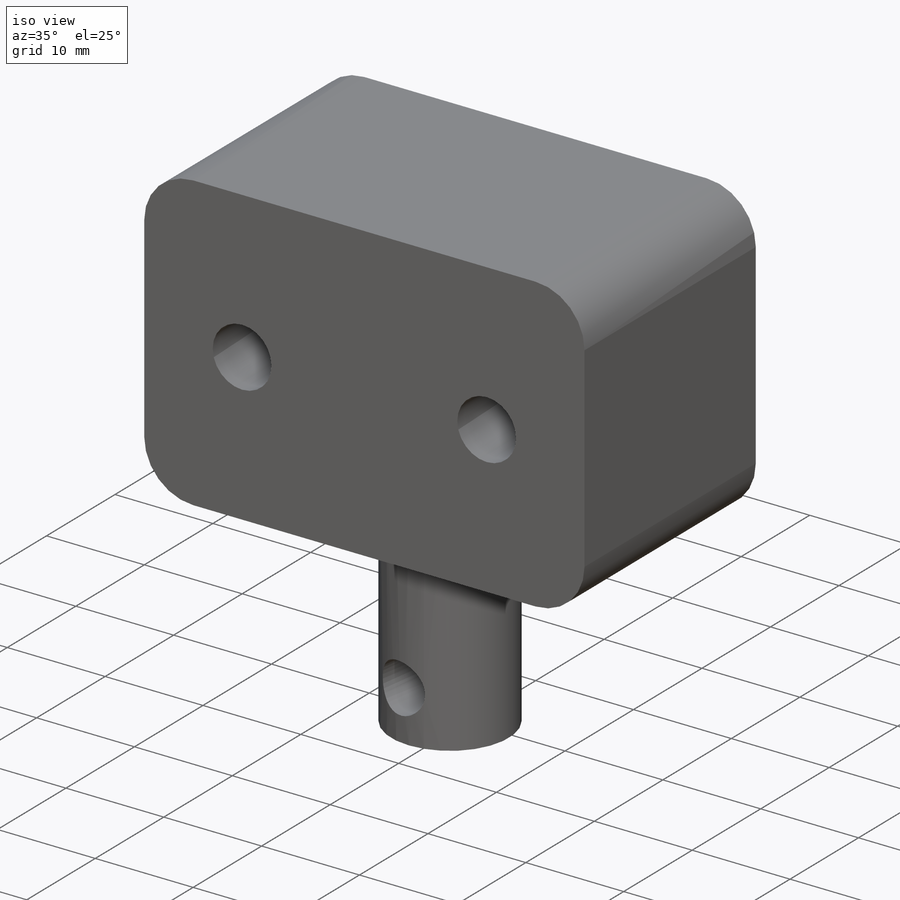
[diagram: iso view]
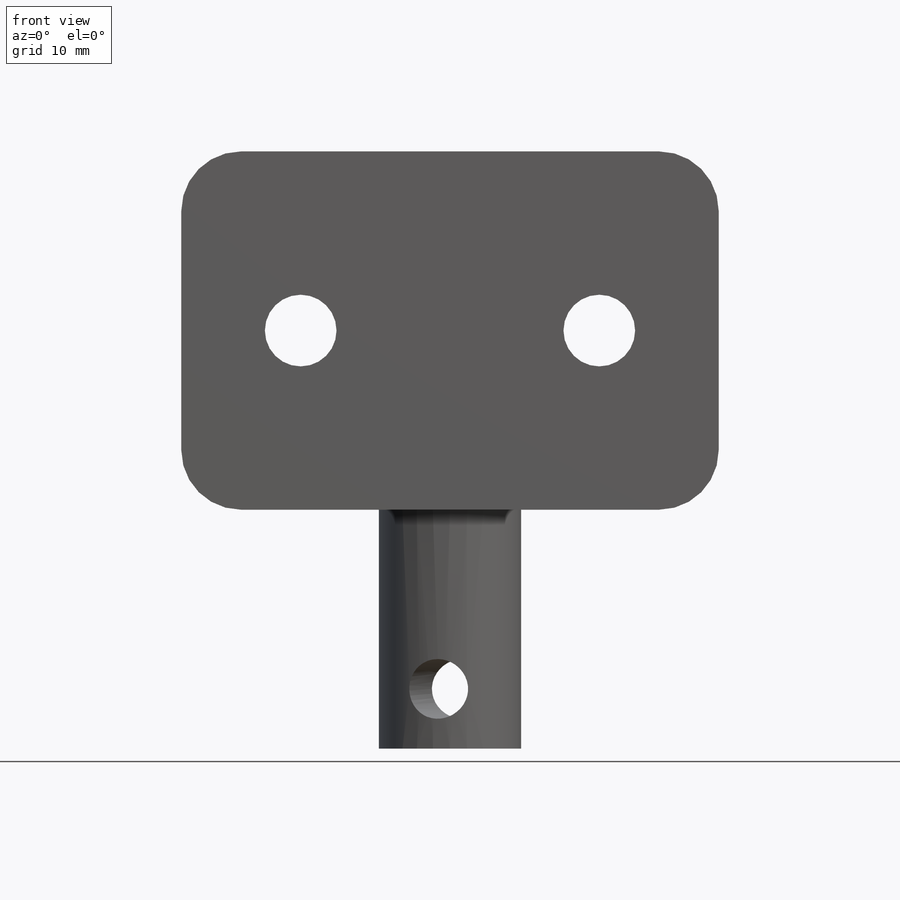
[diagram: front view]
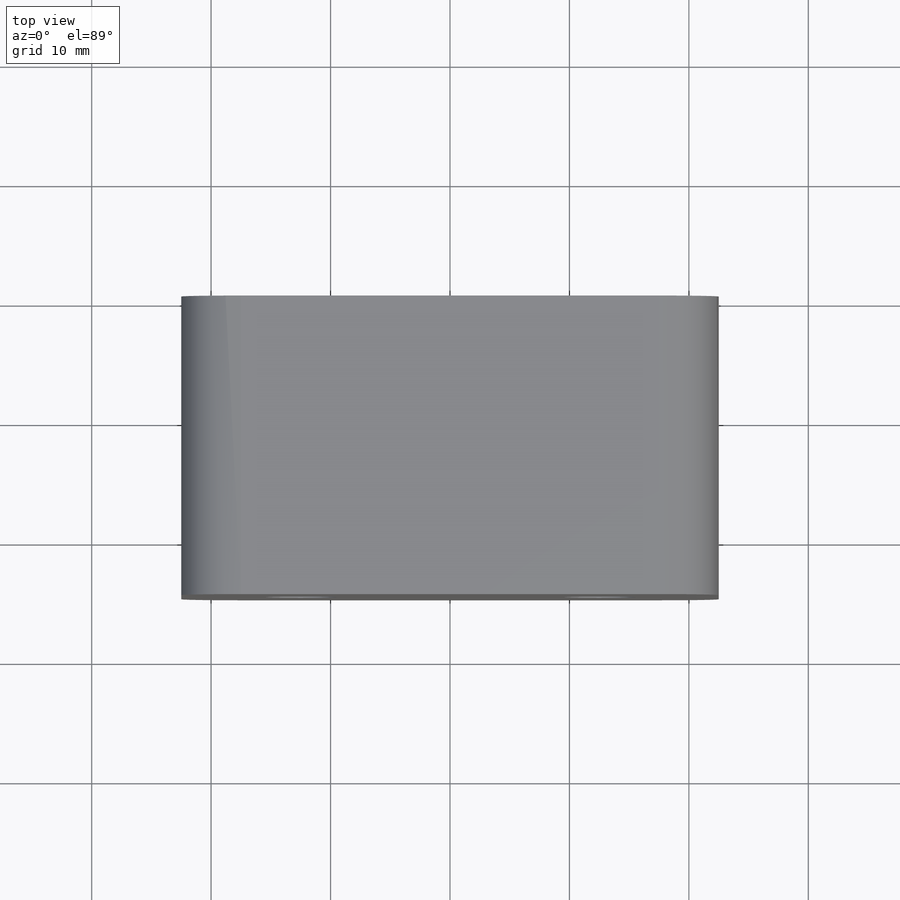
[diagram: top view]
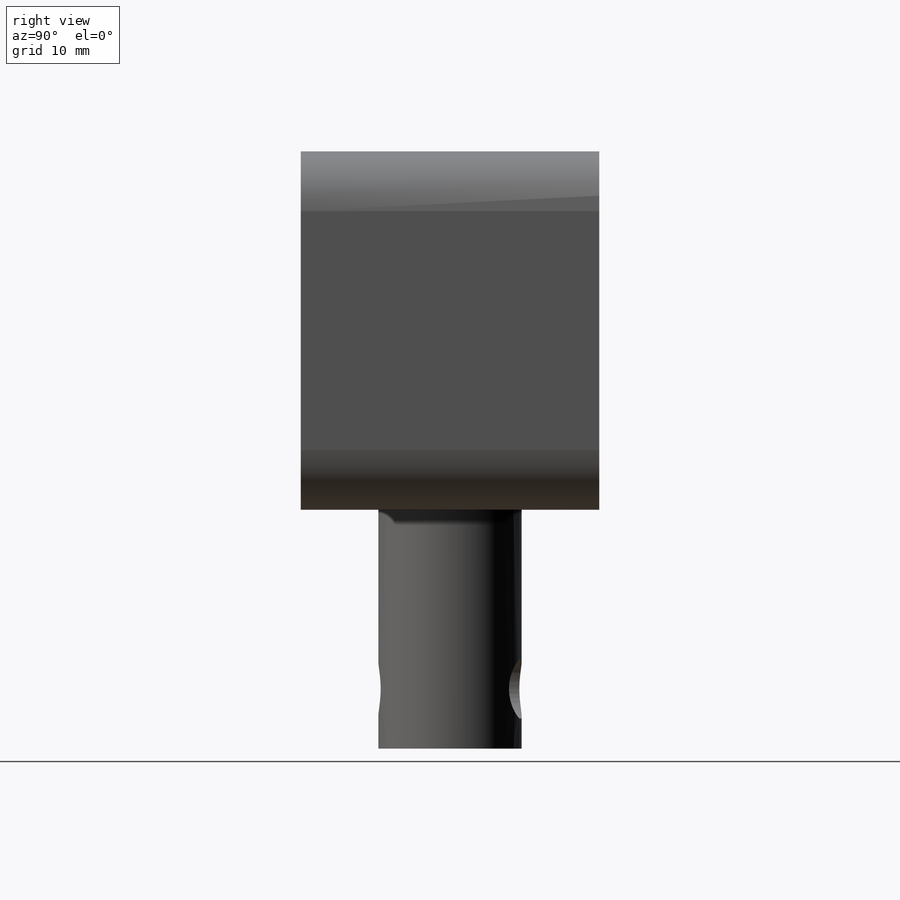
[diagram: right view]
SOLIDWORKS PART (.sldprt)
format: sldprt  version: not decoded by parser v0  size: 219,648 bytes
history: native  units: mm
features: plane x4, sketch x3, extrude x2, material x1, fillet x1, cut_extrude x1 (+9 scaffold rows collapsed)
feature tree (21):
  scaffold x9  (default folders/planes/origin — collapsed)
  material  "普通碳钢"
  plane  "前视基准面"
  plane  "上视基准面"
  plane  "右视基准面"
  sketch  "草图1"  dims[c1.D3=6.0mm c1.D1=~15.907109mm c1.D2=~27.260286mm c2.D1=45.0mm c2.D2=30.0mm c2.D3=~0.121661mm c2.D4=25.0mm]
  extrude  "凸台-拉伸1"  Depth=25mm
  fillet  "圆角1"  Radius=5mm
  sketch  "草图2"  dims[D1=24.0mm]
  extrude  "凸台-拉伸2"  Depth=20mm
  plane  "基准面1"
  sketch  "草图3"  dims[c1.D1=5.0mm c1.D2=5.0mm c2.D1=5.0mm]
  cut_extrude  "切除-拉伸1"  [1 undecoded]
decode coverage: 6 of 7 modeling features carry decoded parameters
note: ~ marks probable driven/reference dimensions
note: 1 parameter value undecoded
note: suppression state not decoded; provenance and decode notes live in map.json
